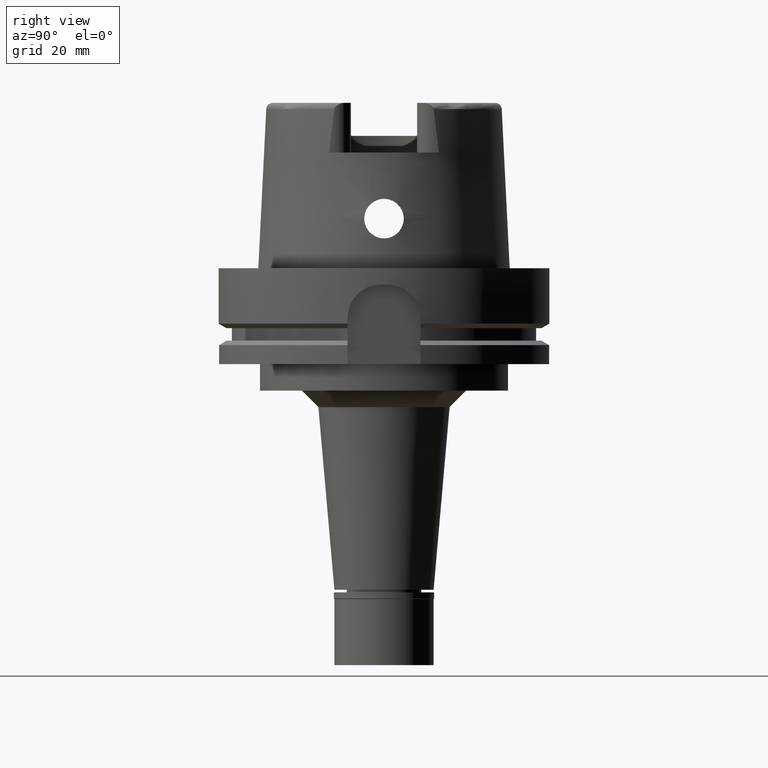
[diagram: clean part render]
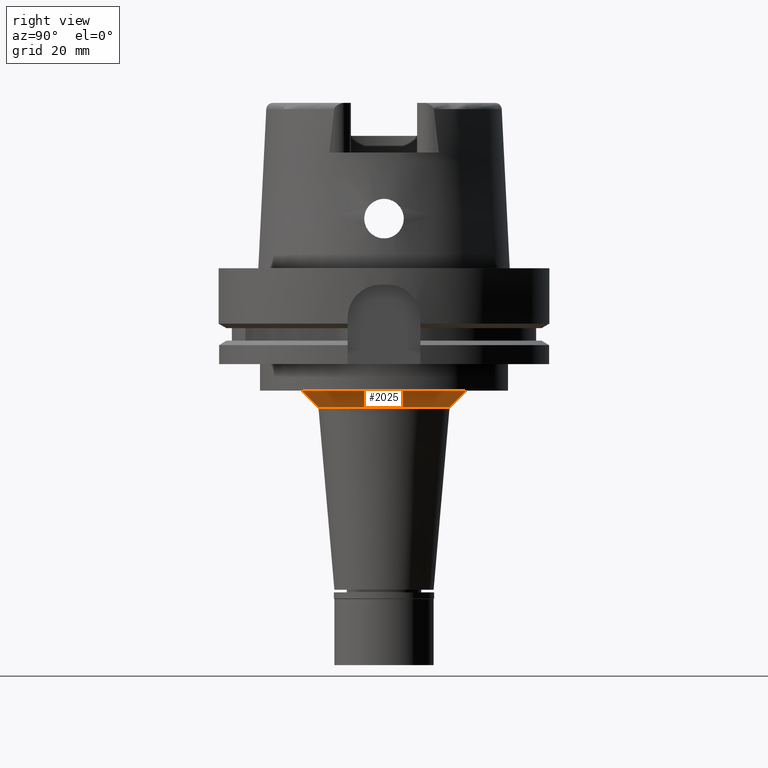
[diagram: same view with one face highlighted and labeled with its STEP entity id]
A machine part, right view. The second image highlights one B-rep face of the part: STEP entity #2025.
In plain terms, the highlighted conical surface has half-angle 45 deg.
Its self-contained STEP definition (entity closure, byte-faithful):
#81 = DIRECTION ( 'NONE',  ( 0.0000000000000000000, -1.000000000000000000, 0.0000000000000000000 ) ) ;
#119 = EDGE_LOOP ( 'NONE', ( #2254, #5557, #4827, #373 ) ) ;
#285 = CIRCLE ( 'NONE', #3415, 19.82937422664000238 ) ;
#367 = CARTESIAN_POINT ( 'NONE',  ( 0.0000000000000000000, 0.0000000000000000000, -37.00000000000000000 ) ) ;
#373 = ORIENTED_EDGE ( 'NONE', *, *, #4238, .F. ) ;
#576 = CIRCLE ( 'NONE', #3086, 24.82937422663000149 ) ;
#760 = DIRECTION ( 'NONE',  ( 0.0000000000000000000, 0.0000000000000000000, -1.000000000000000000 ) ) ;
#1015 = DIRECTION ( 'NONE',  ( 0.0000000000000000000, 0.7071067811862974395, -0.7071067811867974839 ) ) ;
#1563 = CARTESIAN_POINT ( 'NONE',  ( 0.0000000000000000000, 19.82937422663000149, -42.00000000000000000 ) ) ;
#1616 = LINE ( 'NONE', #4448, #2989 ) ;
#1814 = DIRECTION ( 'NONE',  ( 0.0000000000000000000, 0.0000000000000000000, 1.000000000000000000 ) ) ;
#2025 = ADVANCED_FACE ( 'NONE', ( #2256 ), #3271, .T. ) ;
#2157 = LINE ( 'NONE', #4286, #5483 ) ;
#2254 = ORIENTED_EDGE ( 'NONE', *, *, #2353, .T. ) ;
#2256 = FACE_OUTER_BOUND ( 'NONE', #119, .T. ) ;
#2281 = CARTESIAN_POINT ( 'NONE',  ( 0.0000000000000000000, 24.82937422663000149, -37.00000000000000000 ) ) ;
#2353 = EDGE_CURVE ( 'NONE', #3407, #3296, #576, .T. ) ;
#2671 = VERTEX_POINT ( 'NONE', #1563 ) ;
#2961 = EDGE_CURVE ( 'NONE', #3296, #4534, #1616, .T. ) ;
#2989 = VECTOR ( 'NONE', #1015, 1000.000000000000114 ) ;
#3086 = AXIS2_PLACEMENT_3D ( 'NONE', #367, #760, #3843 ) ;
#3129 = DIRECTION ( 'NONE',  ( 0.0000000000000000000, 1.000000000000000000, 0.0000000000000000000 ) ) ;
#3271 = CONICAL_SURFACE ( 'NONE', #5517, 22.32937422663000149, 0.7853981633972997312 ) ;
#3296 = VERTEX_POINT ( 'NONE', #3572 ) ;
#3407 = VERTEX_POINT ( 'NONE', #2281 ) ;
#3415 = AXIS2_PLACEMENT_3D ( 'NONE', #3955, #1814, #81 ) ;
#3499 = DIRECTION ( 'NONE',  ( 0.0000000000000000000, -0.7071067811862974395, -0.7071067811867974839 ) ) ;
#3572 = CARTESIAN_POINT ( 'NONE',  ( 0.0000000000000000000, -24.82937422663000149, -37.00000000000000000 ) ) ;
#3599 = CARTESIAN_POINT ( 'NONE',  ( 0.0000000000000000000, 0.0000000000000000000, -39.50000000000000000 ) ) ;
#3843 = DIRECTION ( 'NONE',  ( 0.0000000000000000000, 1.000000000000000000, 0.0000000000000000000 ) ) ;
#3955 = CARTESIAN_POINT ( 'NONE',  ( 0.0000000000000000000, 0.0000000000000000000, -42.00000000000000000 ) ) ;
#4238 = EDGE_CURVE ( 'NONE', #3407, #2671, #2157, .T. ) ;
#4286 = CARTESIAN_POINT ( 'NONE',  ( 0.0000000000000000000, 24.82937422663000149, -37.00000000000000000 ) ) ;
#4448 = CARTESIAN_POINT ( 'NONE',  ( 0.0000000000000000000, -24.82937422663000149, -37.00000000000000000 ) ) ;
#4534 = VERTEX_POINT ( 'NONE', #5215 ) ;
#4827 = ORIENTED_EDGE ( 'NONE', *, *, #5467, .T. ) ;
#5215 = CARTESIAN_POINT ( 'NONE',  ( 0.0000000000000000000, -19.82937422663000149, -42.00000000000000000 ) ) ;
#5270 = DIRECTION ( 'NONE',  ( 0.0000000000000000000, 0.0000000000000000000, 1.000000000000000000 ) ) ;
#5467 = EDGE_CURVE ( 'NONE', #4534, #2671, #285, .T. ) ;
#5483 = VECTOR ( 'NONE', #3499, 1000.000000000000114 ) ;
#5517 = AXIS2_PLACEMENT_3D ( 'NONE', #3599, #5270, #3129 ) ;
#5557 = ORIENTED_EDGE ( 'NONE', *, *, #2961, .T. ) ;